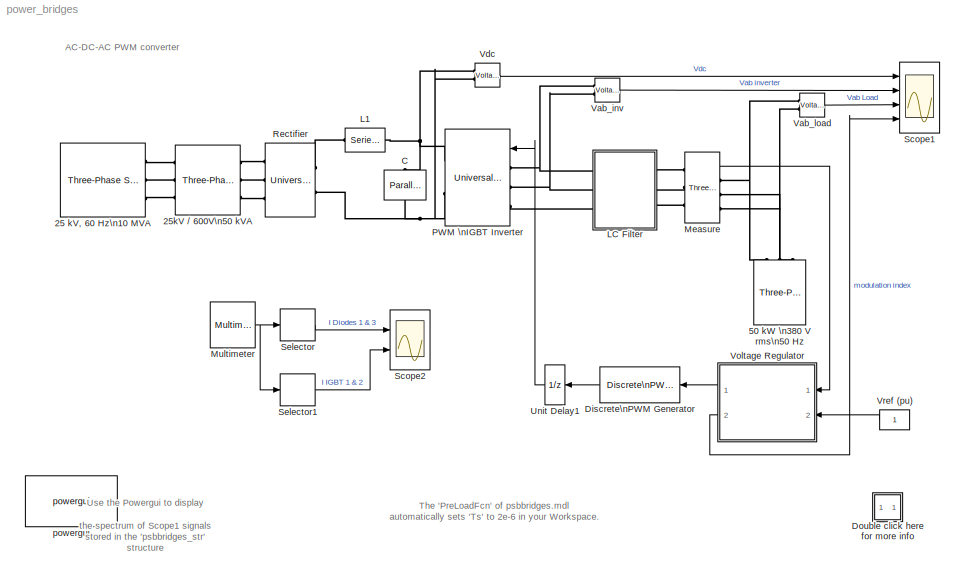
MODEL power_bridges
KIND model
CONFIG PreLoadFcn = assignin('base','Ts',[2e-6])
BLOCK [Reference] 25 kV, 60 Hz\n10 MVA  REF=powerlib/Electrical\nSources/Three-Phase Source
  BaseVoltage = 25e3
  Frequency = 60
  Inductance = 25e3^2/10e6/377
  InternalConnection = Yg
  PhaseAngle = 0
  Ports = [0, 0, 0, 0, 0, 0, 3]
  Resistance = 25e3^2/10e6/5
  ShortCircuitLevel = 10e6
  ShowPortLabels = on
  SourceBlock = powerlib/Electrical\nSources/Three-Phase Source
  SourceType = Three-Phase Source
  SpecifyImpedance = on
  Voltage = 25e3
  XRratio = 5
BLOCK [Reference] 25kV // 600V\n50 kVA  REF=powerlib/Elements/Three-Phase\nTransformer\n(Two Windings)
  AttributesFormatString = \\n
  DataFile = 'hysteresis'
  Hysteresis = off
  InitialFluxes = [ 0.8 , -0.8 , 0.7 ]
  Lm = 200
  Measurements = None
  NominalPower = [ 50e3 , 60 ]
  Ports = [0, 0, 0, 0, 0, 3, 3]
  Rm = 200
  Saturation = [ 0,0  ;  0.005,1.2  ;  1.0,1.4 ]
  SetInitialFlux = off
  SetSaturation = off
  ShowPortLabels = on
  SourceBlock = powerlib/Elements/Three-Phase\nTransformer\n(Two Windings)
  SourceType = Three-Phase Transformer (Two Windings)
  TransfoNumber = 0
  Winding1 = [ 25e3 , 0.004 , 0.02 ]
  Winding1Connection = Yg
  Winding2 = [ 600 , 0.004 , 0.02 ]
  Winding2Connection = Delta (D1)
BLOCK [Reference] 50 kW \n380 V rms\n50 Hz  REF=powerlib/Elements/Three-Phase\nParallel RLC Load
  ActivePower = 50e3
  AttributesFormatString = \\n
  CapacitivePower = 0
  Configuration = Y (grounded)
  InductivePower = 0
  LConnTagsString = A|B|C
  LeftPortType = p1
  Measurements = None
  NominalFrequency = 50
  NominalVoltage = 380
  PhysicalDomain = powersysdomain
  Ports = [0, 0, 0, 0, 0, 3]
  RightPortType = p1
  SourceBlock = powerlib/Elements/Three-Phase\nParallel RLC Load
  SourceType = Three-Phase Parallel RLC Load
  SubClassName = unknown
BLOCK [Reference] C  REF=powerlib/Elements/Parallel RLC Branch
  AttributesFormatString = \\n
  Capacitance = 5000e-06
  Inductance = inf
  LConnTagsString = a
  LeftPortType = p1
  Measurements = None
  PhysicalDomain = powersysdomain
  Ports = [0, 0, 0, 0, 0, 1, 1]
  RConnTagsString = __new0
  Resistance = inf
  RightPortType = p1
  SourceBlock = powerlib/Elements/Parallel RLC Branch
  SourceType = Parallel RLC Branch
  SubClassName = unknown
BLOCK [Reference] Discrete\nPWM Generator  REF=powerlib_extras/Discrete \nControl Blocks/Discrete\nPWM Generator
  Fc = 2000
  Freq = 60
  GeneratorMode = 3-arm  bridge (6 pulses)
  Internal = off
  Phase = 0
  Ports = [1, 1]
  ShowPortLabels = on
  SourceBlock = powerlib_extras/Discrete \nControl Blocks/Discrete\nPWM Generator
  SourceType = Discrete PWM Generator
  Ts = Ts
  mIndex = 0.4
BLOCK [SubSystem] Double click here for more info
  MaskDisplay = disp('?')
  MaskIconFrame = on
  MaskIconOpaque = on
  MaskIconRotate = none
  MaskIconUnits = autoscale
  MinAlgLoopOccurrences = off
  Ports = []
  RTWSystemCode = Auto
  TreatAsAtomicUnit = off
BLOCK [Reference] L1  REF=powerlib/Elements/Series RLC Branch
  AttributesFormatString = \\n
  Capacitance = inf
  Inductance = 200e-6
  LConnTagsString = __new0
  LeftPortType = p1
  Measurements = None
  PhysicalDomain = powersysdomain
  Ports = [0, 0, 0, 0, 0, 1, 1]
  RConnTagsString = __new0
  Resistance = 0
  RightPortType = p1
  SourceBlock = powerlib/Elements/Series RLC Branch
  SourceType = Series RLC Branch
  SubClassName = unknown
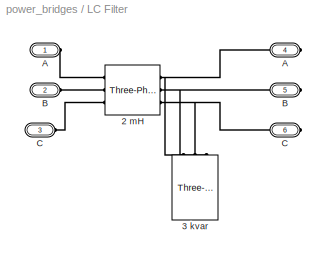
BLOCK [SubSystem] LC Filter
  MinAlgLoopOccurrences = off
  Ports = [0, 0, 0, 0, 0, 3, 3]
  RTWSystemCode = Auto
  TreatAsAtomicUnit = off
BLOCK [Reference] LC Filter/2 mH   REF=powerlib/Elements/Three-Phase\nSeries RLC Branch
  AttributesFormatString = \\n
  Capacitance = inf
  Inductance = 2e-3
  LConnTagsString = A|B|C
  LeftPortType = p1
  Measurements = None
  PhysicalDomain = powersysdomain
  Ports = [0, 0, 0, 0, 0, 3, 3]
  RConnTagsString = A|B|C
  Resistance = 0
  RightPortType = p1
  SourceBlock = powerlib/Elements/Three-Phase\nSeries RLC Branch
  SourceType = Three-Phase Series RLC Branch
  SubClassName = unknown
BLOCK [Reference] LC Filter/3 kvar  REF=powerlib/Elements/Three-Phase\nSeries RLC Load
  ActivePower = 0
  AttributesFormatString = \\n
  CapacitivePower = 3e3
  Configuration = Y (grounded)
  InductivePower = 0
  LConnTagsString = A|B|C
  LeftPortType = p1
  Measurements = None
  NominalFrequency = 50
  NominalVoltage = 380
  PhysicalDomain = powersysdomain
  Ports = [0, 0, 0, 0, 0, 3]
  RightPortType = p1
  SourceBlock = powerlib/Elements/Three-Phase\nSeries RLC Load
  SourceType = Three-Phase Series RLC Load
  SubClassName = unknown
BLOCK [PMIOPort] LC Filter/A
  Port = 1
  Side = Left
BLOCK [PMIOPort] LC Filter/A 
  Port = 4
  Side = Right
BLOCK [PMIOPort] LC Filter/B
  Port = 2
  Side = Left
BLOCK [PMIOPort] LC Filter/B 
  Port = 5
  Side = Right
BLOCK [PMIOPort] LC Filter/C
  Port = 3
  Side = Left
BLOCK [PMIOPort] LC Filter/C 
  Port = 6
  Side = Right
BLOCK [Reference] Measure  REF=powerlib/Measurements/Three-Phase\nV-I Measurement
  CurrentMeasurement = no
  Ipu = off
  LabelI = I1
  LabelV = V1
  OutputType = Magnitude
  PSBequivalent = 0
  Pbase = 1e3
  PhasorSimulation = off
  Ports = [0, 1, 0, 0, 0, 3, 3]
  SetLabelI = off
  SetLabelV = off
  ShowPortLabels = on
  SourceBlock = powerlib/Measurements/Three-Phase\nV-I Measurement
  SourceType = Three-Phase VI Measurement
  Vbase = 380
  VoltageMeasurement = phase-to-ground
  Vpu = on
BLOCK [Reference] Multimeter  REF=powerlib/Measurements/Multimeter
  AttributesFormatString = \\n
  AxesSetting = [0,0.1,-100,100]
  Display = 0
  Gain = [1 1 1 1]
  L = 12
  OutputType = Magnitude
  PSBOutputType = 1
  PSBequivalent = 0
  PhasorSimulation = off
  Ports = [0, 1]
  SavedBlockNames = -11
  ShowPortLabels = on
  SourceBlock = powerlib/Measurements/Multimeter
  SourceType = MultimeterPSB
  Tag = PoWeRsYsTeMmEaSuReMeNt
  sel = [1 3 7 8]
  yselected = {'Isw1: Rectifier','Isw3: Rectifier','Isw1: PWM  IGBT Inverter','Isw2: PWM  IGBT Inverter'};
BLOCK [Reference] PWM \nIGBT Inverter  REF=powerlib/Power\nElectronics/Universal Bridge
  Arms = 3
  AttributesFormatString = \\n
  Device = IGBT / Diodes
  ForwardVoltage = .8
  ForwardVoltages = [  0.0  0.0  ]
  GTOparameters = [ 1e-6 ,1e-6 ]
  IGBTparameters = [ 1e-6 , 2e-6 ]
  Lon = 0
  Measurements = Device currents
  Ports = [1, 0, 0, 0, 0, 3, 2]
  Ron = 1e-3
  ShowPortLabels = on
  SnubberCapacitance = inf
  SnubberResistance = 5000
  SourceBlock = powerlib/Power\nElectronics/Universal Bridge
  SourceType = Universal Bridge
BLOCK [Reference] Rectifier  REF=powerlib/Power\nElectronics/Universal Bridge
  Arms = 3
  AttributesFormatString = \\n
  Device = Diodes
  ForwardVoltage = .8
  ForwardVoltages = [  0.8  0.8  ]
  GTOparameters = [ 10e-6 , 20e-6 ]
  IGBTparameters = [ 1e-6 , 2e-6 ]
  Lon = 0
  Measurements = Device currents
  Ports = [0, 0, 0, 0, 0, 3, 2]
  Ron = 1e-3
  ShowPortLabels = on
  SnubberCapacitance = 0.1e-6
  SnubberResistance = 100
  SourceBlock = powerlib/Power\nElectronics/Universal Bridge
  SourceType = Universal Bridge
BLOCK [Scope] Scope1
  DataFormat = StructureWithTime
  LimitDataPoints = off
  NumInputPorts = 4
  Ports = [4]
  SaveName = psbbridges_str
  SaveToWorkspace = on
  TimeRange = 0.1
  YMax = 1100~1500~750~1.1
  YMin = 0~-1500~-750~0.4
  ZoomMode = yonly
BLOCK [Scope] Scope2
  DataFormat = StructureWithTime
  LimitDataPoints = off
  NumInputPorts = 2
  Ports = [2]
  TimeRange = 0.09999999999999999
  YMax = 100~125
  YMin = -10~-125
BLOCK [Selector] Selector
  Elements = [1 2]
  InputPortWidth = 4
  Ports = [1, 1]
BLOCK [Selector] Selector1
  Elements = [3 4]
  InputPortWidth = 4
  Ports = [1, 1]
BLOCK [UnitDelay] Unit Delay1
  SampleTime = Ts
BLOCK [Reference] Vab_inv  REF=powerlib/Measurements/Voltage Measurement
  AttributesFormatString = \\n
  OutputType = Magnitude
  PSBequivalent = 0
  PhasorSimulation = off
  Ports = [0, 1, 0, 0, 0, 2]
  ShowPortLabels = on
  SourceBlock = powerlib/Measurements/Voltage Measurement
  SourceType = Voltage Measurement
  Tag = PoWeRsYsTeMmEaSuReMeNt
BLOCK [Reference] Vab_load  REF=powerlib/Measurements/Voltage Measurement
  AttributesFormatString = \\n
  OutputType = Magnitude
  PSBequivalent = 0
  PhasorSimulation = off
  Ports = [0, 1, 0, 0, 0, 2]
  ShowPortLabels = on
  SourceBlock = powerlib/Measurements/Voltage Measurement
  SourceType = Voltage Measurement
  Tag = PoWeRsYsTeMmEaSuReMeNt
BLOCK [Reference] Vdc  REF=powerlib/Measurements/Voltage Measurement
  AttributesFormatString = \\n
  OutputType = Magnitude
  PSBequivalent = 0
  PhasorSimulation = off
  Ports = [0, 1, 0, 0, 0, 2]
  ShowPortLabels = on
  SourceBlock = powerlib/Measurements/Voltage Measurement
  SourceType = Voltage Measurement
  Tag = PoWeRsYsTeMmEaSuReMeNt
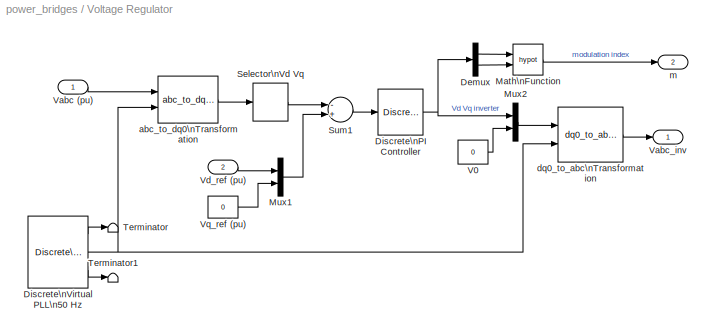
BLOCK [SubSystem] Voltage Regulator
  MaskCallbackString = ||
  MaskEnableString = on,on,on
  MaskIconFrame = on
  MaskIconOpaque = on
  MaskIconRotate = none
  MaskIconUnits = autoscale
  MaskPromptString = Proportional gain  Kp:|Integral gain Ki:|Sample time (s) :
  MaskStyleString = edit,edit,edit
  MaskTabNameString = ,,
  MaskToolTipString = on,on,on
  MaskTunableValueString = on,on,on
  MaskType = Voltage Regulator
  MaskValueString = 0.4|500|Ts
  MaskVarAliasString = ,,
  MaskVariables = Kp=@1;Ki=@2;Ts=@3;
  MaskVisibilityString = on,on,on
  MinAlgLoopOccurrences = off
  Ports = [2, 2]
  RTWSystemCode = Auto
  TreatAsAtomicUnit = off
BLOCK [Demux] Voltage Regulator/Demux
  Outputs = 2
  Ports = [1, 2]
BLOCK [Reference] Voltage Regulator/Discrete\nPI Controller  REF=powerlib_extras/Discrete \nControl Blocks/Discrete\nPI Controller
  Init = 0
  Ki = Ki
  Kp = Kp
  Par_Limits = [1 -1]
  Ports = [1, 1]
  ShowPortLabels = on
  SourceBlock = powerlib_extras/Discrete \nControl Blocks/Discrete\nPI Controller
  SourceType = Discrete PI Controller
  Ts = Ts
BLOCK [Reference] Voltage Regulator/Discrete\nVirtual PLL\n50 Hz  REF=powerlib_extras/Discrete \nControl Blocks/Discrete\nVirtual PLL
  Freq = 50
  Phase = 0
  Ports = [0, 3]
  ShowPortLabels = on
  SourceBlock = powerlib_extras/Discrete \nControl Blocks/Discrete\nVirtual PLL
  SourceType = Discrete Virtual PLL
  Ts = Ts
BLOCK [Math] Voltage Regulator/Math\nFunction
  Operator = hypot
  Ports = [2, 1]
BLOCK [Mux] Voltage Regulator/Mux1
  DisplayOption = bar
  Inputs = 2
  Ports = [2, 1]
BLOCK [Mux] Voltage Regulator/Mux2
  DisplayOption = bar
  Inputs = 2
  Ports = [2, 1]
BLOCK [Selector] Voltage Regulator/Selector\nVd Vq
  Elements = [1 2]
  InputPortWidth = 3
  Ports = [1, 1]
BLOCK [Sum] Voltage Regulator/Sum1
  Inputs = -+
  Ports = [2, 1]
BLOCK [Terminator] Voltage Regulator/Terminator
BLOCK [Terminator] Voltage Regulator/Terminator1
BLOCK [Constant] Voltage Regulator/V0
  Value = 0
BLOCK [Inport] Voltage Regulator/Vabc (pu)
  IconDisplay = Port number
  LatchInput = off
  Port = 1
BLOCK [Outport] Voltage Regulator/Vabc_inv
  BusOutputAsStruct = off
  IconDisplay = Port number
BLOCK [Inport] Voltage Regulator/Vd_ref (pu)
  IconDisplay = Port number
  LatchInput = off
  Port = 2
BLOCK [Constant] Voltage Regulator/Vq_ref (pu)
  Value = 0
BLOCK [Reference] Voltage Regulator/abc_to_dq0\nTransformation  REF=powerlib_extras/Measurements/abc_to_dq0\nTransformation
  Ports = [2, 1]
  ShowPortLabels = on
  SourceBlock = powerlib_extras/Measurements/abc_to_dq0\nTransformation
  SourceType = abc to dq0 Transformation
BLOCK [Reference] Voltage Regulator/dq0_to_abc\nTransformation  REF=powerlib_extras/Measurements/dq0_to_abc\nTransformation
  Ports = [2, 1]
  ShowPortLabels = on
  SourceBlock = powerlib_extras/Measurements/dq0_to_abc\nTransformation
  SourceType = dq0 to abc Transformation
BLOCK [Outport] Voltage Regulator/m
  BusOutputAsStruct = off
  IconDisplay = Port number
  Port = 2
BLOCK [Constant] Vref (pu) 
BLOCK [Reference] powergui  REF=powerlib/powergui
  DisplayStyle = off
  Frange = [0:2:500]
  FreqAxis = off
  MaxFrequency = 7000
  Ports = []
  Priority = 2
  RmsSteady = 1
  ShowPortLabels = on
  SourceBlock = powerlib/powergui
  SourceType = PSB option menu block
  StartTime = 0.1-2/50
  Ts = Ts
  Xlog = on
  Ylog = off
  ZoomFFT = on
  cycles = 2
  display = off
  echomessages = on
  frequency = 60
  frequencyindice = 1
  frequencyindicesteady = 1
  fundamental = 50
  methode = off
  save = off
  structure = psbbridges_str
  variable = ZData
ANNOTATION (root): AC-DC-AC PWM converter
ANNOTATION (root): The 'PreLoadFcn' of psbbridges.mdl\nautomatically sets 'Ts' to 2e-6 in your Workspace.
ANNOTATION (root): Use the Powergui to display\nthe spectrum of Scope1 signals \nstored in the 'psbbridges_str' \nstructure
ANNOTATION Double click here for more info: A 60 Hz, voltage source feeds a 50 Hz, 50 kW load through an AC-DC-AC converter. \n\nThe 600V, 60 Hz voltage obtained at secondary of the Wye/Delta transformer is first rectified by a six pulse diode bridge.\nThe filtered DC voltage is applied to an IGBT two-level inverter generating 50 Hz.\nThe IGBT inverter uses Pulse Width Modulation (PWM) at a 2 kHz carrier frequency.\nThe circuit is discretiz...<+845ch>
ANNOTATION Double click here for more info: Circuit Description
ANNOTATION Double click here for more info: Demonstration
ANNOTATION Double click here for more info: G. Sybille (Hydro-Quebec)
ANNOTATION Double click here for more info: Start the simulation. After a transient period of approximately 50 ms, the system reaches a steady state.\nObserve voltage waveforms at DC bus, inverter output and load on Scope1.\nThe harmonics generated by the inverter around around multiples of 2 kHz are filtered by the LC filter.\n\nAs expected the peak value of the load voltage is 537 V (380 Vrms). \nIn steady state, the mean value of the mod...<+1119ch>
ANNOTATION Double click here for more info: This example of AC-DC-AC converter illustrates use of Universal Bridge, \nMultimeter, and Powergui blocks, as well as discrete control blocks of the Extras library
LINE Discrete\nPWM Generator:1 -> Unit Delay1:1
LINE Measure:1 -> Voltage Regulator:1
NET Multimeter:1 -> Selector1:1, Selector:1
LINE Selector1:1 -> Scope2:2
LINE Selector:1 -> Scope2:1
LINE Unit Delay1:1 -> PWM \nIGBT Inverter:1
LINE Vab_inv:1 -> Scope1:2
LINE Vab_load:1 -> Scope1:3
LINE Vdc:1 -> Scope1:1
LINE Voltage Regulator/Demux:1 -> Voltage Regulator/Math\nFunction:1
LINE Voltage Regulator/Demux:2 -> Voltage Regulator/Math\nFunction:2
NET Voltage Regulator/Discrete\nPI Controller:1 -> Voltage Regulator/Demux:1, Voltage Regulator/Mux2:1
LINE Voltage Regulator/Discrete\nVirtual PLL\n50 Hz:1 -> Voltage Regulator/Terminator:1
NET Voltage Regulator/Discrete\nVirtual PLL\n50 Hz:2 -> Voltage Regulator/abc_to_dq0\nTransformation:2, Voltage Regulator/dq0_to_abc\nTransformation:2
LINE Voltage Regulator/Discrete\nVirtual PLL\n50 Hz:3 -> Voltage Regulator/Terminator1:1
LINE Voltage Regulator/Math\nFunction:1 -> Voltage Regulator/m:1
LINE Voltage Regulator/Mux1:1 -> Voltage Regulator/Sum1:2
LINE Voltage Regulator/Mux2:1 -> Voltage Regulator/dq0_to_abc\nTransformation:1
LINE Voltage Regulator/Selector\nVd Vq:1 -> Voltage Regulator/Sum1:1
LINE Voltage Regulator/Sum1:1 -> Voltage Regulator/Discrete\nPI Controller:1
LINE Voltage Regulator/V0:1 -> Voltage Regulator/Mux2:2
LINE Voltage Regulator/Vabc (pu):1 -> Voltage Regulator/abc_to_dq0\nTransformation:1
LINE Voltage Regulator/Vd_ref (pu):1 -> Voltage Regulator/Mux1:1
LINE Voltage Regulator/Vq_ref (pu):1 -> Voltage Regulator/Mux1:2
LINE Voltage Regulator/abc_to_dq0\nTransformation:1 -> Voltage Regulator/Selector\nVd Vq:1
LINE Voltage Regulator/dq0_to_abc\nTransformation:1 -> Voltage Regulator/Vabc_inv:1
LINE Voltage Regulator:1 -> Discrete\nPWM Generator:1
LINE Voltage Regulator:2 -> Scope1:4
LINE Vref (pu) :1 -> Voltage Regulator:2
PLINE 25 kV, 60 Hz\n10 MVA:RConn1 -- 25kV // 600V\n50 kVA:LConn1
PLINE 25 kV, 60 Hz\n10 MVA:RConn2 -- 25kV // 600V\n50 kVA:LConn2
PLINE 25 kV, 60 Hz\n10 MVA:RConn3 -- 25kV // 600V\n50 kVA:LConn3
PLINE 25kV // 600V\n50 kVA:RConn1 -- Rectifier:LConn1
PLINE 25kV // 600V\n50 kVA:RConn2 -- Rectifier:LConn2
PLINE 25kV // 600V\n50 kVA:RConn3 -- Rectifier:LConn3
PNET net1: 50 kW \n380 V rms\n50 Hz:LConn1 -- Measure:RConn1 -- Vab_load:LConn1
PNET net2: 50 kW \n380 V rms\n50 Hz:LConn2 -- Measure:RConn2 -- Vab_load:LConn2
PLINE 50 kW \n380 V rms\n50 Hz:LConn3 -- Measure:RConn3
PNET net3: C:LConn1 -- L1:RConn1 -- PWM \nIGBT Inverter:RConn1 -- Vdc:LConn1
PNET net4: C:RConn1 -- PWM \nIGBT Inverter:RConn2 -- Rectifier:RConn2 -- Vdc:LConn2
PLINE L1:LConn1 -- Rectifier:RConn1
PLINE LC Filter/2 mH :LConn1 -- LC Filter/A:RConn1
PLINE LC Filter/2 mH :LConn2 -- LC Filter/B:RConn1
PLINE LC Filter/2 mH :LConn3 -- LC Filter/C:RConn1
PNET net5: LC Filter/2 mH :RConn1 -- LC Filter/3 kvar:LConn1 -- LC Filter/A :RConn1
PNET net6: LC Filter/2 mH :RConn2 -- LC Filter/3 kvar:LConn2 -- LC Filter/B :RConn1
PNET net7: LC Filter/2 mH :RConn3 -- LC Filter/3 kvar:LConn3 -- LC Filter/C :RConn1
PNET net8: LC Filter:LConn1 -- PWM \nIGBT Inverter:LConn1 -- Vab_inv:LConn1
PNET net9: LC Filter:LConn2 -- PWM \nIGBT Inverter:LConn2 -- Vab_inv:LConn2
PLINE LC Filter:LConn3 -- PWM \nIGBT Inverter:LConn3
PLINE LC Filter:RConn1 -- Measure:LConn1
PLINE LC Filter:RConn2 -- Measure:LConn2
PLINE LC Filter:RConn3 -- Measure:LConn3
note: NET lines group one-source signal fan-out (src -> all destinations, sorted); 1:1 wires keep LINE; PNET lines group multi-terminal physical nets as a canonical sorted terminal list (undirected conserving connections); 2-terminal nets keep the pairwise PLINE form
